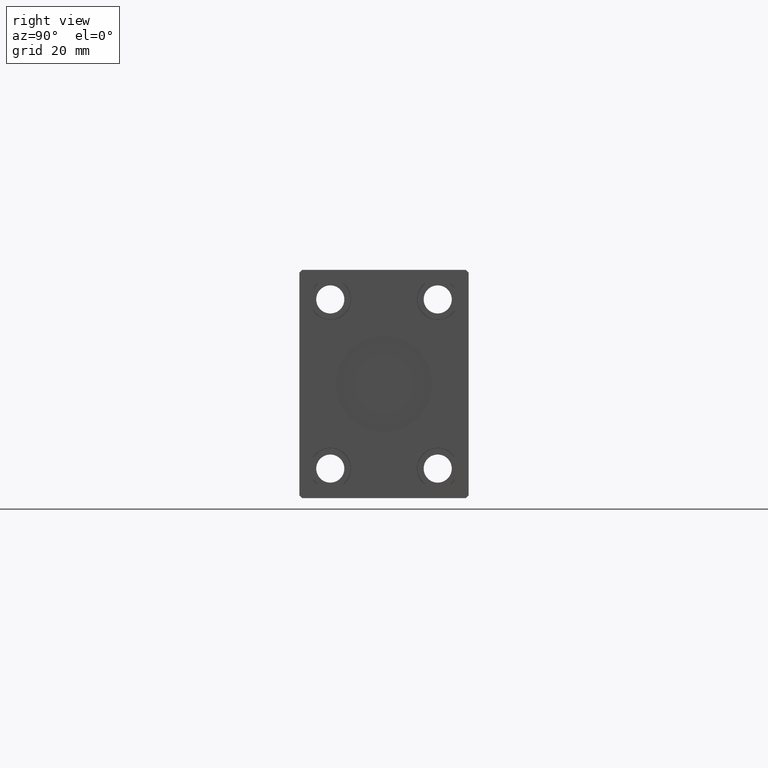
[diagram: clean part render]
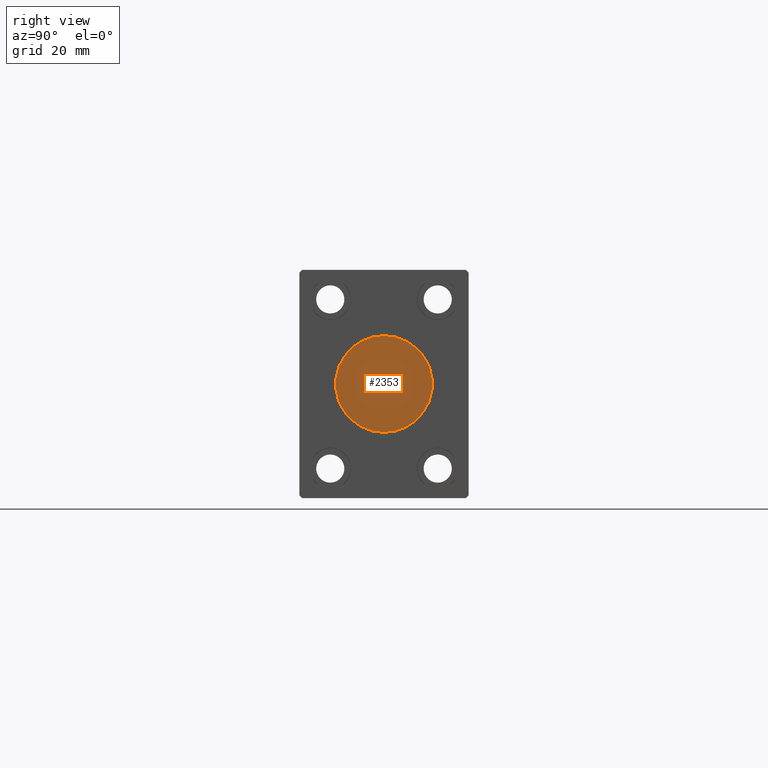
[diagram: same view with one face highlighted and labeled with its STEP entity id]
A machine part, right view. The second image highlights one B-rep face of the part: STEP entity #2353.
In plain terms, the highlighted planar face has unit normal (1, 0, 0).
Its self-contained STEP definition (entity closure, byte-faithful):
#574 = AXIS2_PLACEMENT_3D ( 'NONE', #20086, #6550, #3539 ) ;
#1499 = CARTESIAN_POINT ( 'NONE',  ( 250.8000000000000114, 0.000000000000000000, -18.00000000000000000 ) ) ;
#1606 = VERTEX_POINT ( 'NONE', #20414 ) ;
#1847 = DIRECTION ( 'NONE',  ( 1.000000000000000000, 0.000000000000000000, 0.000000000000000000 ) ) ;
#2353 = ADVANCED_FACE ( 'NONE', ( #12051 ), #25152, .T. ) ;
#3539 = DIRECTION ( 'NONE',  ( 0.000000000000000000, 0.000000000000000000, -1.000000000000000000 ) ) ;
#3607 = AXIS2_PLACEMENT_3D ( 'NONE', #34698, #1847, #14949 ) ;
#6550 = DIRECTION ( 'NONE',  ( 1.000000000000000000, 0.000000000000000000, 0.000000000000000000 ) ) ;
#8938 = AXIS2_PLACEMENT_3D ( 'NONE', #14417, #27731, #21729 ) ;
#9965 = EDGE_CURVE ( 'NONE', #11949, #1606, #12513, .T. ) ;
#11949 = VERTEX_POINT ( 'NONE', #1499 ) ;
#12051 = FACE_OUTER_BOUND ( 'NONE', #23746, .T. ) ;
#12513 = CIRCLE ( 'NONE', #3607, 18.00000000000000000 ) ;
#14417 = CARTESIAN_POINT ( 'NONE',  ( 250.8000000000000114, 0.000000000000000000, 0.000000000000000000 ) ) ;
#14949 = DIRECTION ( 'NONE',  ( 0.000000000000000000, 0.000000000000000000, -1.000000000000000000 ) ) ;
#17839 = ORIENTED_EDGE ( 'NONE', *, *, #38145, .T. ) ;
#18104 = ORIENTED_EDGE ( 'NONE', *, *, #9965, .T. ) ;
#20086 = CARTESIAN_POINT ( 'NONE',  ( 250.8000000000000114, 0.000000000000000000, 0.000000000000000000 ) ) ;
#20414 = CARTESIAN_POINT ( 'NONE',  ( 250.8000000000000114, 2.204364238465235428E-15, 18.00000000000000000 ) ) ;
#21729 = DIRECTION ( 'NONE',  ( 0.000000000000000000, 0.000000000000000000, -1.000000000000000000 ) ) ;
#23746 = EDGE_LOOP ( 'NONE', ( #18104, #17839 ) ) ;
#25152 = PLANE ( 'NONE',  #8938 ) ;
#27731 = DIRECTION ( 'NONE',  ( 1.000000000000000000, 0.000000000000000000, 0.000000000000000000 ) ) ;
#30736 = CIRCLE ( 'NONE', #574, 18.00000000000000000 ) ;
#34698 = CARTESIAN_POINT ( 'NONE',  ( 250.8000000000000114, 0.000000000000000000, 0.000000000000000000 ) ) ;
#38145 = EDGE_CURVE ( 'NONE', #1606, #11949, #30736, .T. ) ;